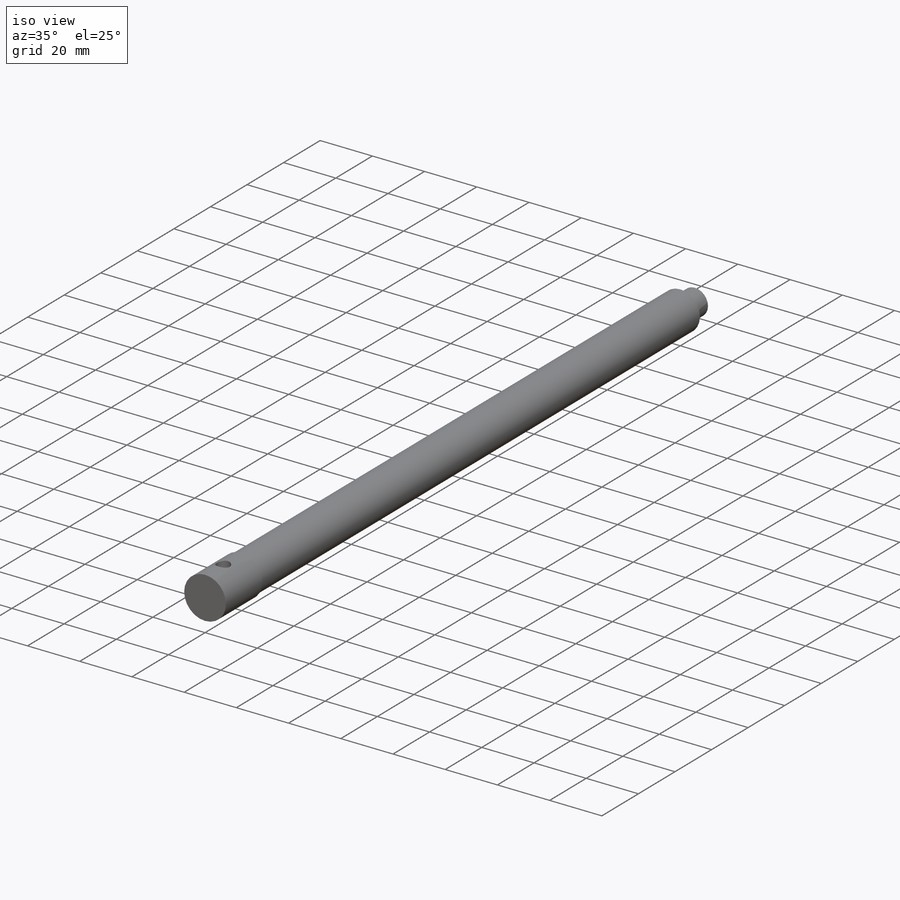
[diagram: iso view]
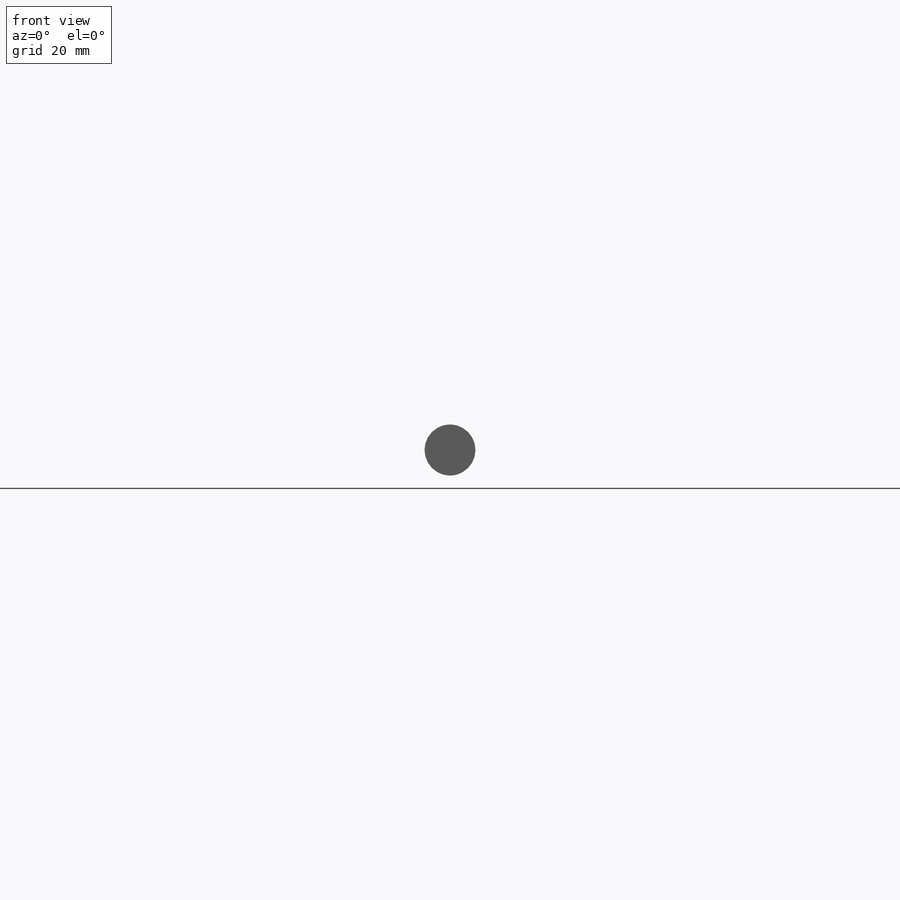
[diagram: front view]
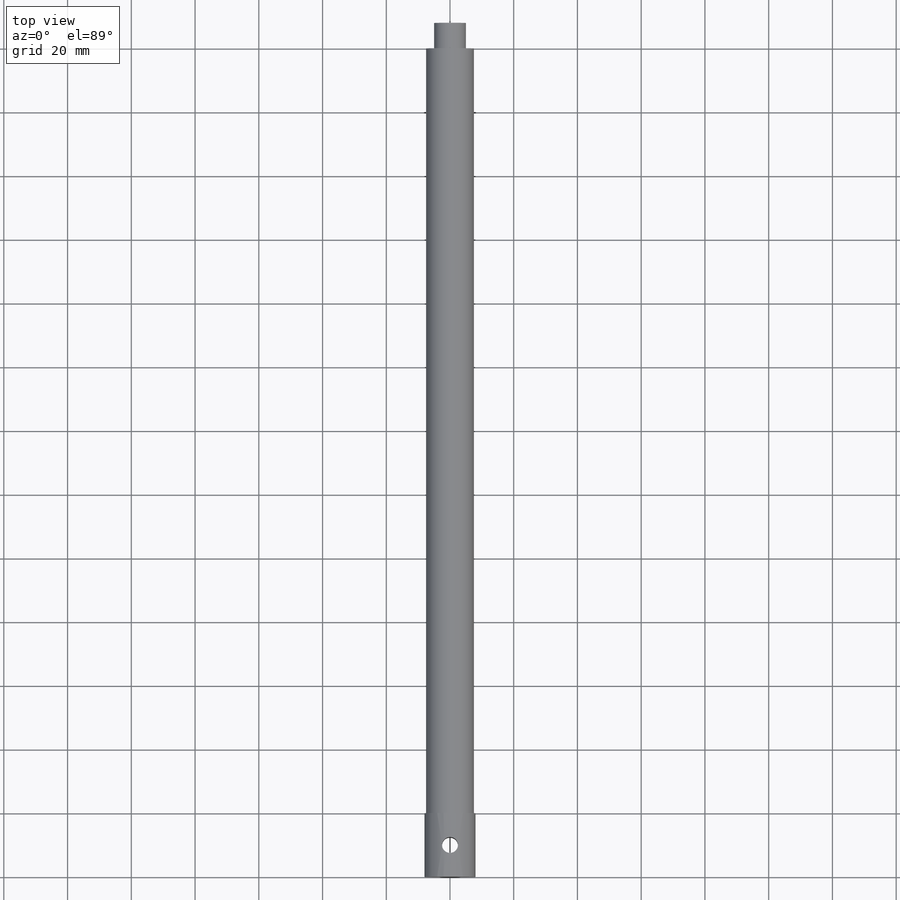
[diagram: top view]
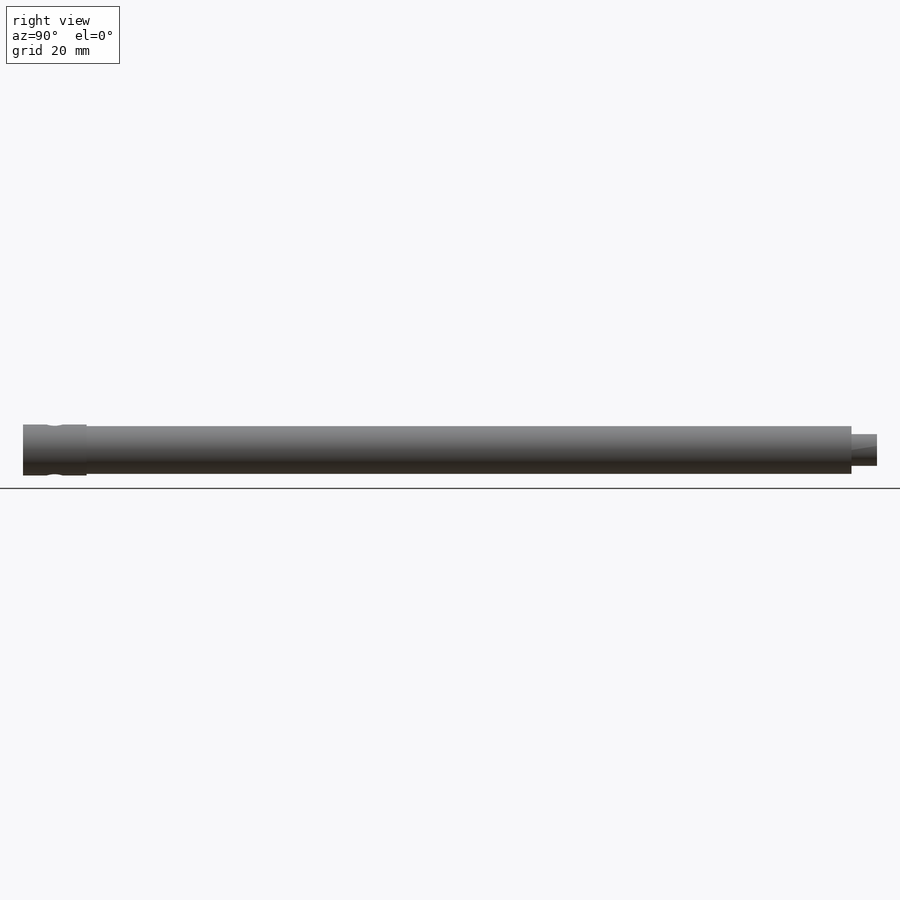
[diagram: right view]
SOLIDWORKS PART (.sldprt)
format: sldprt  version: not decoded by parser v0  size: 214,016 bytes
history: native  units: mm
features: sketch x4, extrude x3, material x1, thread x1, cut_extrude x1 (+16 scaffold rows collapsed)
feature tree (26):
  scaffold x16  (default folders/planes/origin — collapsed)
  material  "Stainless Steel (ferritic)"
  sketch  "Sketch1"  dims[D1=15.0mm]
  extrude  "Boss-Extrude1"  [1 undecoded]
  thread  "Cosmetic Thread2"  Diameter=11.797mm  [1 undecoded]
  sketch  "Sketch5"  dims[D1=16.0mm]
  extrude  "Boss-Extrude2"  Depth=20mm
  sketch  "Sketch8"  dims[D1=10.0mm]
  extrude  "Boss-Extrude4"  Depth=8mm
  sketch  "Sketch9"  dims[D1=5.0mm]
  cut_extrude  "Cut-Extrude3"  Depth=8mm
decode coverage: 8 of 9 modeling features carry decoded parameters
note: 2 parameter values undecoded
note: suppression state not decoded; provenance and decode notes live in map.json
